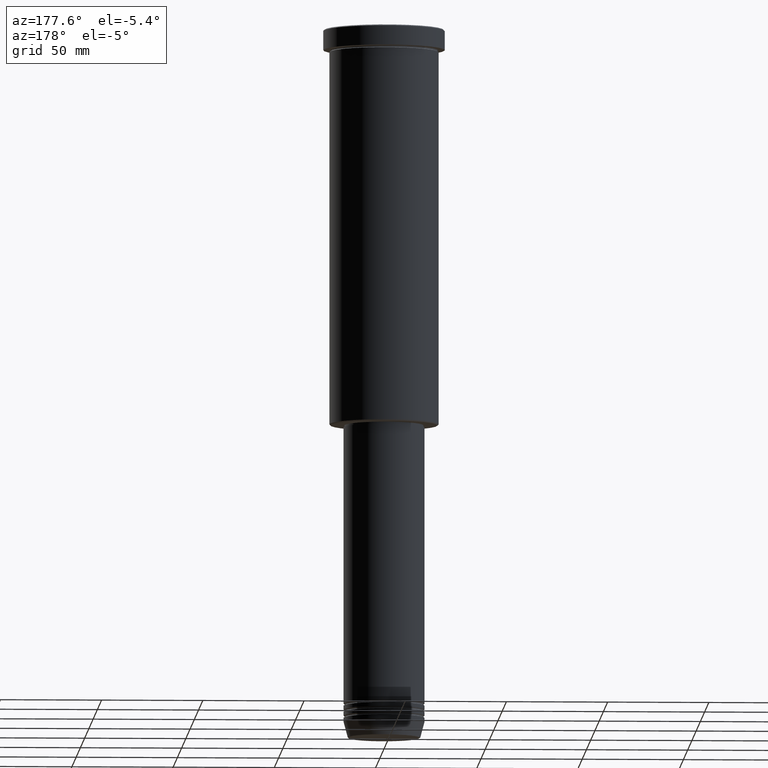
[diagram: clean part render]
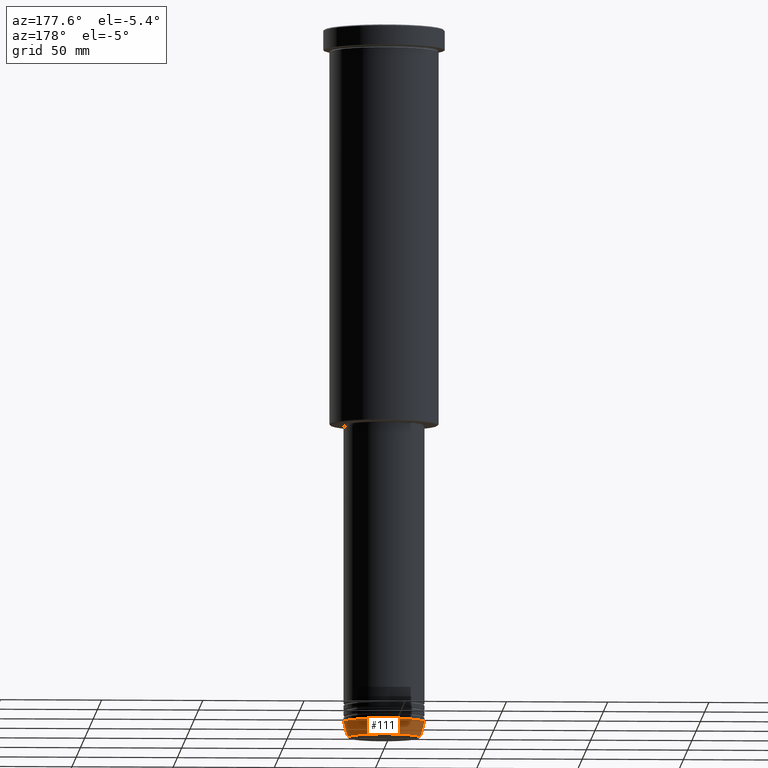
[diagram: same view with one face highlighted and labeled with its STEP entity id]
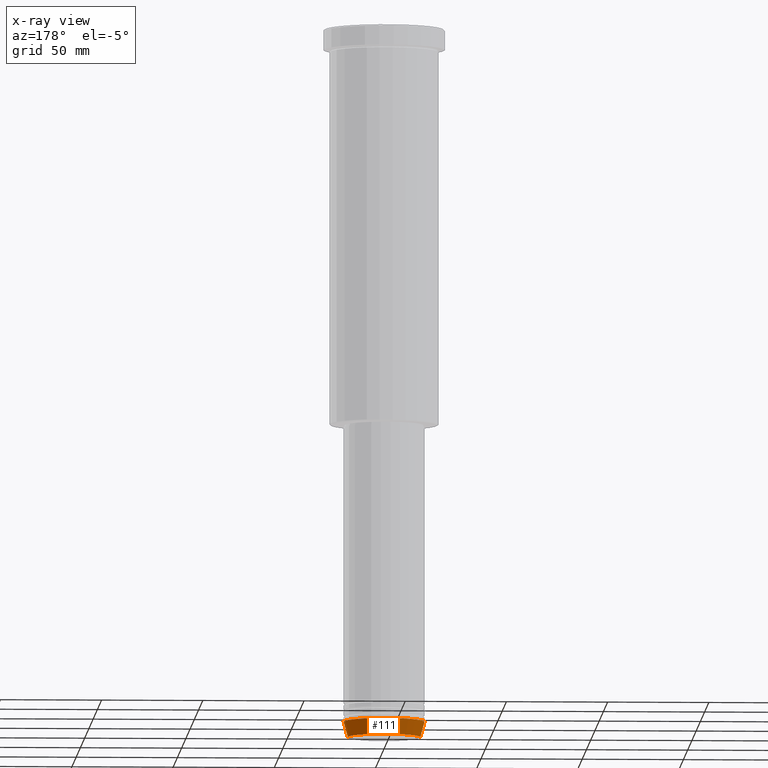
[diagram: x-ray of the same camera — body ghosted, the highlighted face saturated]
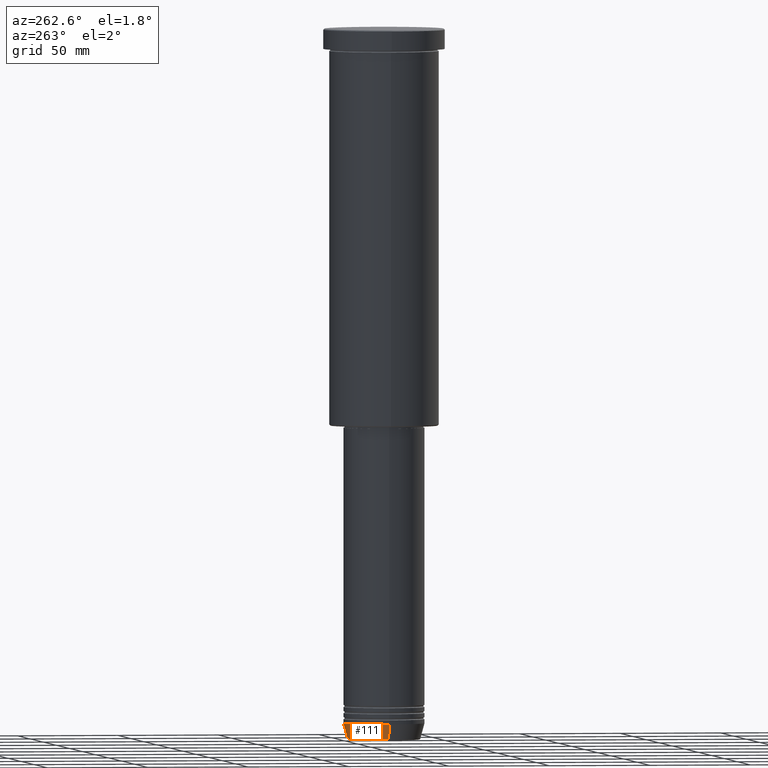
[diagram: same view with one face highlighted and labeled with its STEP entity id]
A machine part, auxiliary view. The second image highlights one B-rep face of the part: STEP entity #111.
The next image is the same camera in x-ray: the body ghosted, the highlighted face saturated — about 0% of this face is hidden behind the body in this view.
A second angle (auxiliary view) of the same face is appended — the face is thin or edge-on in the first view.
In plain terms, the highlighted conical surface has half-angle 15 deg.
Its self-contained STEP definition (entity closure, byte-faithful):
#42 = CARTESIAN_POINT ( 'NONE',  ( -20.00000000000000000, 2.449293598294706513E-15, -343.0000000000000000 ) ) ;
#50 = CARTESIAN_POINT ( 'NONE',  ( -17.95570587970606269, 2.324116685748020582E-15, -350.6294095225512706 ) ) ;
#64 = AXIS2_PLACEMENT_3D ( 'NONE', #314, #733, #671 ) ;
#90 = ORIENTED_EDGE ( 'NONE', *, *, #934, .T. ) ;
#111 = ADVANCED_FACE ( 'NONE', ( #217 ), #781, .T. ) ;
#158 = CIRCLE ( 'NONE', #253, 17.95570587970606269 ) ;
#167 = CARTESIAN_POINT ( 'NONE',  ( 20.00000000000000000, 0.000000000000000000, -343.0000000000000000 ) ) ;
#217 = FACE_OUTER_BOUND ( 'NONE', #380, .T. ) ;
#218 = LINE ( 'NONE', #42, #821 ) ;
#221 = CARTESIAN_POINT ( 'NONE',  ( 0.000000000000000000, 0.000000000000000000, -350.6294095225512706 ) ) ;
#253 = AXIS2_PLACEMENT_3D ( 'NONE', #221, #409, #925 ) ;
#266 = EDGE_CURVE ( 'NONE', #640, #539, #218, .T. ) ;
#291 = DIRECTION ( 'NONE',  ( -0.2588190451025212391, 3.169619151431771721E-17, 0.9659258262890680902 ) ) ;
#292 = CIRCLE ( 'NONE', #955, 20.00000000000000000 ) ;
#314 = CARTESIAN_POINT ( 'NONE',  ( 0.000000000000000000, 0.000000000000000000, -343.0000000000000000 ) ) ;
#338 = ORIENTED_EDGE ( 'NONE', *, *, #802, .F. ) ;
#348 = VECTOR ( 'NONE', #902, 1000.000000000000114 ) ;
#366 = EDGE_CURVE ( 'NONE', #512, #539, #292, .T. ) ;
#380 = EDGE_LOOP ( 'NONE', ( #90, #913, #648, #338 ) ) ;
#409 = DIRECTION ( 'NONE',  ( -0.000000000000000000, -0.000000000000000000, 1.000000000000000000 ) ) ;
#423 = VERTEX_POINT ( 'NONE', #1150 ) ;
#430 = CARTESIAN_POINT ( 'NONE',  ( 20.00000000000000000, 0.000000000000000000, -343.0000000000000000 ) ) ;
#441 = LINE ( 'NONE', #167, #348 ) ;
#512 = VERTEX_POINT ( 'NONE', #430 ) ;
#539 = VERTEX_POINT ( 'NONE', #814 ) ;
#558 = DIRECTION ( 'NONE',  ( -0.000000000000000000, -0.000000000000000000, 1.000000000000000000 ) ) ;
#569 = CARTESIAN_POINT ( 'NONE',  ( 0.000000000000000000, 0.000000000000000000, -343.0000000000000000 ) ) ;
#640 = VERTEX_POINT ( 'NONE', #50 ) ;
#648 = ORIENTED_EDGE ( 'NONE', *, *, #366, .F. ) ;
#671 = DIRECTION ( 'NONE',  ( 1.000000000000000000, 0.000000000000000000, 0.000000000000000000 ) ) ;
#733 = DIRECTION ( 'NONE',  ( -0.000000000000000000, -0.000000000000000000, 1.000000000000000000 ) ) ;
#781 = CONICAL_SURFACE ( 'NONE', #64, 20.00000000000000000, 0.2617993877991499629 ) ;
#802 = EDGE_CURVE ( 'NONE', #423, #512, #441, .T. ) ;
#814 = CARTESIAN_POINT ( 'NONE',  ( -20.00000000000000000, 2.449293598294706513E-15, -343.0000000000000000 ) ) ;
#821 = VECTOR ( 'NONE', #291, 1000.000000000000114 ) ;
#834 = DIRECTION ( 'NONE',  ( 1.000000000000000000, 0.000000000000000000, 0.000000000000000000 ) ) ;
#902 = DIRECTION ( 'NONE',  ( 0.2588190451025212391, 0.000000000000000000, 0.9659258262890680902 ) ) ;
#913 = ORIENTED_EDGE ( 'NONE', *, *, #266, .T. ) ;
#925 = DIRECTION ( 'NONE',  ( 1.000000000000000000, 0.000000000000000000, 0.000000000000000000 ) ) ;
#934 = EDGE_CURVE ( 'NONE', #423, #640, #158, .T. ) ;
#955 = AXIS2_PLACEMENT_3D ( 'NONE', #569, #558, #834 ) ;
#1150 = CARTESIAN_POINT ( 'NONE',  ( 17.95570587970606269, 0.000000000000000000, -350.6294095225512706 ) ) ;